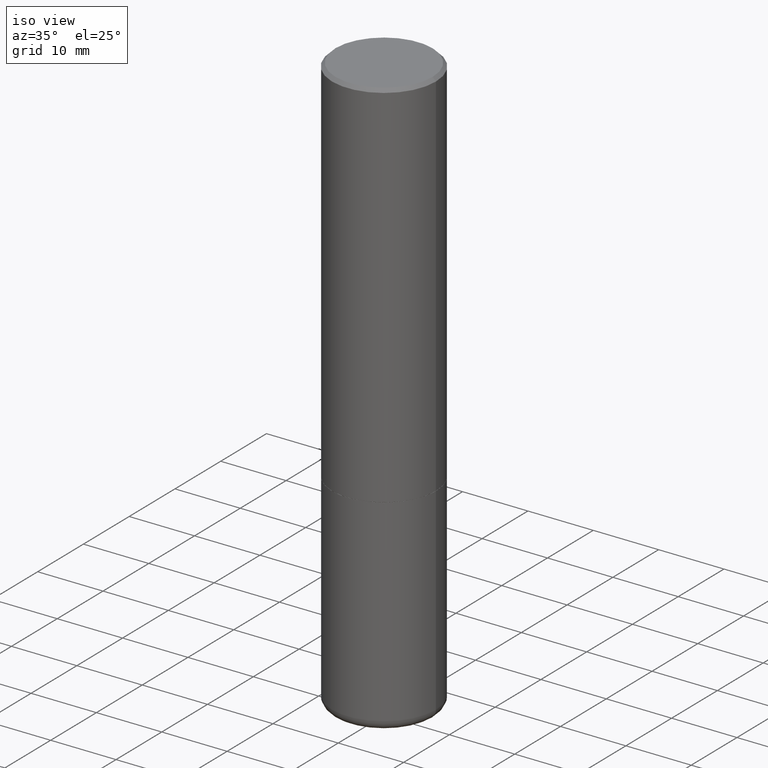
[diagram: clean part render]
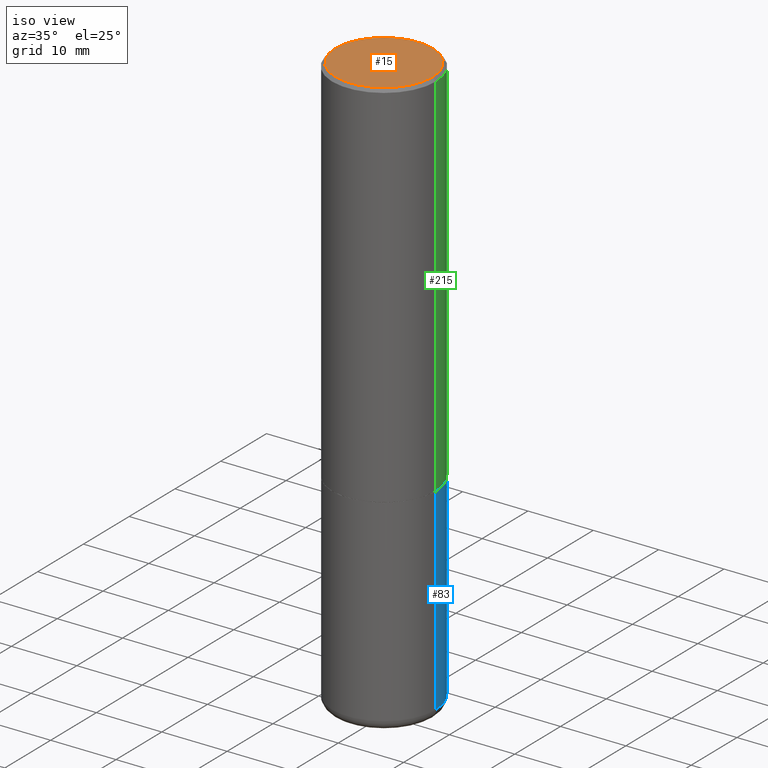
[diagram: same view with three faces highlighted in distinct colors, each labeled with its STEP entity id]
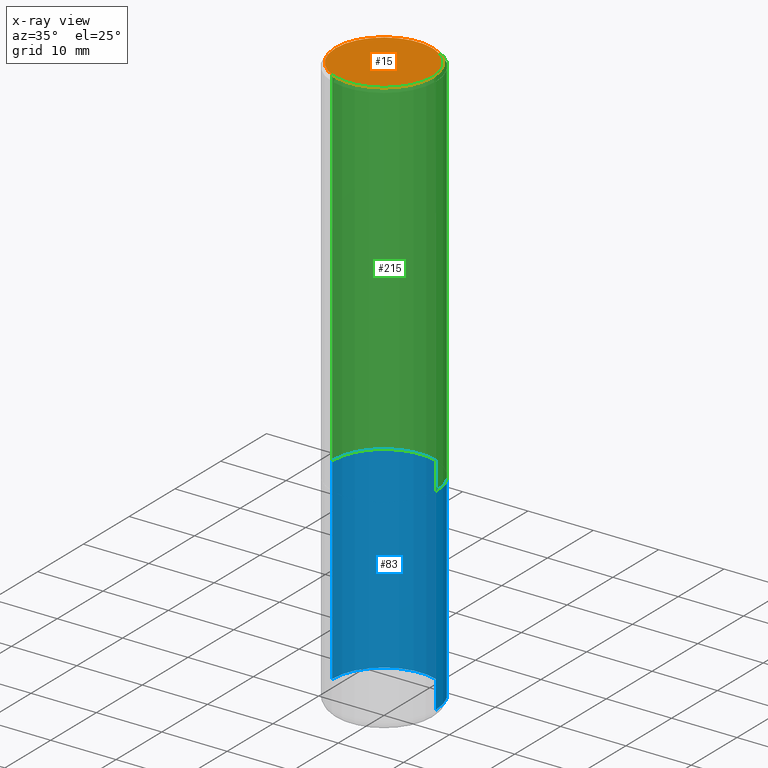
[diagram: x-ray of the same camera — body ghosted, the three highlighted faces saturated]
A machine part, iso view with three faces highlighted in distinct colors.
The next image is the same camera in x-ray (body ghosted, the three faces saturated) — at least one of them is partly hidden behind the body in this view.
Their STEP definitions:

[orange] entity #15 — the highlighted planar face has unit normal (0, -0, -1).
#6 = PLANE ( 'NONE',  #310 ) ;
#10 = CIRCLE ( 'NONE', #49, 0.2925000000000002043 ) ;
#15 = ADVANCED_FACE ( 'NONE', ( #34 ), #6, .F. ) ;
#28 = DIRECTION ( 'NONE',  ( -2.445468806185136597E-29, 3.491481338843145583E-15, 1.000000000000000000 ) ) ;
#30 = DIRECTION ( 'NONE',  ( -1.000000000000000000, 6.982962677686265922E-15, -4.876176775795935793E-29 ) ) ;
#34 = FACE_OUTER_BOUND ( 'NONE', #94, .T. ) ;
#49 = AXIS2_PLACEMENT_3D ( 'NONE', #155, #28, #121 ) ;
#94 = EDGE_LOOP ( 'NONE', ( #129, #313 ) ) ;
#97 = AXIS2_PLACEMENT_3D ( 'NONE', #193, #239, #401 ) ;
#101 = CARTESIAN_POINT ( 'NONE',  ( -0.2925000000000002043, 2.077431396611664977E-15, -1.237868622129263269E-16 ) ) ;
#114 = CARTESIAN_POINT ( 'NONE',  ( 0.2925000000000002043, -2.110215457714321114E-15, -1.237868622128974102E-16 ) ) ;
#121 = DIRECTION ( 'NONE',  ( 1.000000000000000000, -6.982962677686266711E-15, 4.878659607425499935E-29 ) ) ;
#129 = ORIENTED_EDGE ( 'NONE', *, *, #140, .T. ) ;
#140 = EDGE_CURVE ( 'NONE', #221, #232, #403, .T. ) ;
#155 = CARTESIAN_POINT ( 'NONE',  ( 3.027169101572137302E-45, -4.321995194103296744E-31, -1.237868622129119302E-16 ) ) ;
#193 = CARTESIAN_POINT ( 'NONE',  ( 3.027169101572137302E-45, -4.321995194103296744E-31, -1.237868622129119302E-16 ) ) ;
#221 = VERTEX_POINT ( 'NONE', #101 ) ;
#232 = VERTEX_POINT ( 'NONE', #114 ) ;
#239 = DIRECTION ( 'NONE',  ( -2.445468806185136597E-29, 3.491481338843145583E-15, 1.000000000000000000 ) ) ;
#293 = CARTESIAN_POINT ( 'NONE',  ( 2.042516583223234512E-15, 0.2925000000000002043, -1.083151722718076795E-15 ) ) ;
#310 = AXIS2_PLACEMENT_3D ( 'NONE', #293, #396, #30 ) ;
#313 = ORIENTED_EDGE ( 'NONE', *, *, #333, .T. ) ;
#333 = EDGE_CURVE ( 'NONE', #232, #221, #10, .T. ) ;
#396 = DIRECTION ( 'NONE',  ( 2.438088387897960049E-29, -3.491481338843145188E-15, -1.000000000000000000 ) ) ;
#401 = DIRECTION ( 'NONE',  ( 1.000000000000000000, -6.982962677686266711E-15, 4.878659607425499935E-29 ) ) ;
#403 = CIRCLE ( 'NONE', #97, 0.2925000000000002043 ) ;

[blue] entity #83 — the highlighted cylindrical surface (partial cylindrical patch) has radius 7.9375 mm, axis along (-0, 0, 1).
#9 = VECTOR ( 'NONE', #81, 39.37007874015748143 ) ;
#13 = CARTESIAN_POINT ( 'NONE',  ( 8.412412693276869938E-29, -1.201069580562042103E-14, -3.439999999999999947 ) ) ;
#27 = ORIENTED_EDGE ( 'NONE', *, *, #299, .T. ) ;
#39 = ORIENTED_EDGE ( 'NONE', *, *, #240, .T. ) ;
#45 = DIRECTION ( 'NONE',  ( -2.445468806185136597E-29, 3.491481338843145583E-15, 1.000000000000000000 ) ) ;
#62 = AXIS2_PLACEMENT_3D ( 'NONE', #80, #249, #189 ) ;
#66 = EDGE_LOOP ( 'NONE', ( #27, #39, #199, #266 ) ) ;
#72 = VERTEX_POINT ( 'NONE', #305 ) ;
#80 = CARTESIAN_POINT ( 'NONE',  ( 0.000000000000000000, 0.000000000000000000, 0.000000000000000000 ) ) ;
#81 = DIRECTION ( 'NONE',  ( -2.445468806185136877E-29, 3.491481338843145188E-15, 1.000000000000000000 ) ) ;
#82 = CARTESIAN_POINT ( 'NONE',  ( -0.3125000000000000000, 2.220446049250313081E-15, -1.537167215704658232E-29 ) ) ;
#83 = ADVANCED_FACE ( 'NONE', ( #143 ), #275, .T. ) ;
#122 = CARTESIAN_POINT ( 'NONE',  ( 5.502304813916556222E-29, -7.855833012397076871E-15, -2.249999999999999556 ) ) ;
#125 = CARTESIAN_POINT ( 'NONE',  ( -0.3125000000000000000, -9.790249756370107944E-15, -3.439999999999999947 ) ) ;
#133 = CIRCLE ( 'NONE', #176, 0.3125000000000000000 ) ;
#143 = FACE_OUTER_BOUND ( 'NONE', #66, .T. ) ;
#151 = EDGE_CURVE ( 'NONE', #194, #418, #413, .T. ) ;
#160 = CARTESIAN_POINT ( 'NONE',  ( -0.3125000000000000000, -7.712818359758435078E-15, -2.249999999999999556 ) ) ;
#161 = CARTESIAN_POINT ( 'NONE',  ( 0.3125000000000000000, -1.003800884917403522E-14, -2.249999999999999556 ) ) ;
#176 = AXIS2_PLACEMENT_3D ( 'NONE', #13, #45, #277 ) ;
#177 = CARTESIAN_POINT ( 'NONE',  ( 0.3125000000000000000, -2.182175836776958347E-15, 1.523805242436230075E-29 ) ) ;
#189 = DIRECTION ( 'NONE',  ( 1.000000000000000000, -6.982962677686266711E-15, 4.876176775795936353E-29 ) ) ;
#194 = VERTEX_POINT ( 'NONE', #161 ) ;
#199 = ORIENTED_EDGE ( 'NONE', *, *, #151, .F. ) ;
#217 = VERTEX_POINT ( 'NONE', #125 ) ;
#240 = EDGE_CURVE ( 'NONE', #217, #418, #243, .T. ) ;
#243 = LINE ( 'NONE', #82, #9 ) ;
#249 = DIRECTION ( 'NONE',  ( -2.445468806185136597E-29, 3.491481338843145583E-15, 1.000000000000000000 ) ) ;
#250 = EDGE_CURVE ( 'NONE', #72, #194, #402, .T. ) ;
#258 = DIRECTION ( 'NONE',  ( 1.000000000000000000, -6.982962677686269077E-15, 0.000000000000000000 ) ) ;
#266 = ORIENTED_EDGE ( 'NONE', *, *, #250, .F. ) ;
#275 = CYLINDRICAL_SURFACE ( 'NONE', #62, 0.3125000000000000000 ) ;
#277 = DIRECTION ( 'NONE',  ( 1.000000000000000000, -6.982962677686269077E-15, 0.000000000000000000 ) ) ;
#279 = DIRECTION ( 'NONE',  ( -2.445468806185136877E-29, 3.491481338843145188E-15, 1.000000000000000000 ) ) ;
#299 = EDGE_CURVE ( 'NONE', #72, #217, #133, .T. ) ;
#305 = CARTESIAN_POINT ( 'NONE',  ( 0.3125000000000000000, -1.419287164239737937E-14, -3.439999999999999947 ) ) ;
#341 = AXIS2_PLACEMENT_3D ( 'NONE', #122, #411, #258 ) ;
#361 = VECTOR ( 'NONE', #279, 39.37007874015748143 ) ;
#402 = LINE ( 'NONE', #177, #361 ) ;
#411 = DIRECTION ( 'NONE',  ( -2.445468806185136597E-29, 3.491481338843145583E-15, 1.000000000000000000 ) ) ;
#413 = CIRCLE ( 'NONE', #341, 0.3125000000000000000 ) ;
#418 = VERTEX_POINT ( 'NONE', #160 ) ;

[green] entity #215 — the highlighted cylindrical surface (partial cylindrical patch) has radius 7.9375 mm, axis along (-0, 0, 1).
#17 = AXIS2_PLACEMENT_3D ( 'NONE', #385, #110, #328 ) ;
#24 = ORIENTED_EDGE ( 'NONE', *, *, #104, .F. ) ;
#26 = CARTESIAN_POINT ( 'NONE',  ( 5.499859345110371740E-29, -7.852341531058233864E-15, -2.248999999999999666 ) ) ;
#37 = VERTEX_POINT ( 'NONE', #345 ) ;
#56 = CARTESIAN_POINT ( 'NONE',  ( 0.000000000000000000, 0.000000000000000000, 0.000000000000000000 ) ) ;
#93 = DIRECTION ( 'NONE',  ( -2.445468806185136597E-29, 3.491481338843145583E-15, 1.000000000000000000 ) ) ;
#104 = EDGE_CURVE ( 'NONE', #201, #37, #111, .T. ) ;
#110 = DIRECTION ( 'NONE',  ( -2.445468806185136597E-29, 3.491481338843145583E-15, 1.000000000000000000 ) ) ;
#111 = CIRCLE ( 'NONE', #17, 0.3125000000000000555 ) ;
#130 = EDGE_CURVE ( 'NONE', #228, #392, #262, .T. ) ;
#131 = FACE_OUTER_BOUND ( 'NONE', #165, .T. ) ;
#142 = EDGE_CURVE ( 'NONE', #228, #201, #226, .T. ) ;
#156 = LINE ( 'NONE', #287, #270 ) ;
#165 = EDGE_LOOP ( 'NONE', ( #191, #263, #24, #256 ) ) ;
#178 = EDGE_CURVE ( 'NONE', #392, #37, #156, .T. ) ;
#181 = AXIS2_PLACEMENT_3D ( 'NONE', #26, #93, #190 ) ;
#190 = DIRECTION ( 'NONE',  ( 1.000000000000000000, -6.982962677686266711E-15, 0.000000000000000000 ) ) ;
#191 = ORIENTED_EDGE ( 'NONE', *, *, #130, .T. ) ;
#201 = VERTEX_POINT ( 'NONE', #271 ) ;
#212 = AXIS2_PLACEMENT_3D ( 'NONE', #56, #261, #414 ) ;
#215 = ADVANCED_FACE ( 'NONE', ( #131 ), #222, .T. ) ;
#222 = CYLINDRICAL_SURFACE ( 'NONE', #212, 0.3125000000000001665 ) ;
#226 = LINE ( 'NONE', #321, #289 ) ;
#228 = VERTEX_POINT ( 'NONE', #255 ) ;
#252 = DIRECTION ( 'NONE',  ( -2.445468806185136877E-29, 3.491481338843145188E-15, 1.000000000000000000 ) ) ;
#255 = CARTESIAN_POINT ( 'NONE',  ( 0.3125000000000002220, -1.003451736783519379E-14, -2.248999999999999666 ) ) ;
#256 = ORIENTED_EDGE ( 'NONE', *, *, #142, .F. ) ;
#261 = DIRECTION ( 'NONE',  ( -2.445468806185136597E-29, 3.491481338843145583E-15, 1.000000000000000000 ) ) ;
#262 = CIRCLE ( 'NONE', #181, 0.3125000000000002220 ) ;
#263 = ORIENTED_EDGE ( 'NONE', *, *, #178, .T. ) ;
#270 = VECTOR ( 'NONE', #252, 39.37007874015748143 ) ;
#271 = CARTESIAN_POINT ( 'NONE',  ( 0.3125000000000000555, -2.213735251080467306E-15, -0.02000000000000009756 ) ) ;
#287 = CARTESIAN_POINT ( 'NONE',  ( -0.3125000000000001665, 2.220446049250314264E-15, -1.537167215704658792E-29 ) ) ;
#289 = VECTOR ( 'NONE', #294, 39.37007874015748143 ) ;
#294 = DIRECTION ( 'NONE',  ( -2.445468806185136877E-29, 3.491481338843145188E-15, 1.000000000000000000 ) ) ;
#321 = CARTESIAN_POINT ( 'NONE',  ( 0.3125000000000001665, -2.182175836776959530E-15, 1.523805242436230636E-29 ) ) ;
#328 = DIRECTION ( 'NONE',  ( 1.000000000000000000, -6.982962677686266711E-15, 0.000000000000000000 ) ) ;
#345 = CARTESIAN_POINT ( 'NONE',  ( -0.3125000000000000555, 2.112346210000095443E-15, -0.02000000000000009756 ) ) ;
#385 = CARTESIAN_POINT ( 'NONE',  ( 4.890937612370297681E-31, -6.982962677686324889E-17, -0.02000000000000009756 ) ) ;
#392 = VERTEX_POINT ( 'NONE', #412 ) ;
#412 = CARTESIAN_POINT ( 'NONE',  ( -0.3125000000000002220, -1.740639529667233725E-15, -2.248999999999999666 ) ) ;
#414 = DIRECTION ( 'NONE',  ( 1.000000000000000000, -6.982962677686266711E-15, 4.876176775795935232E-29 ) ) ;